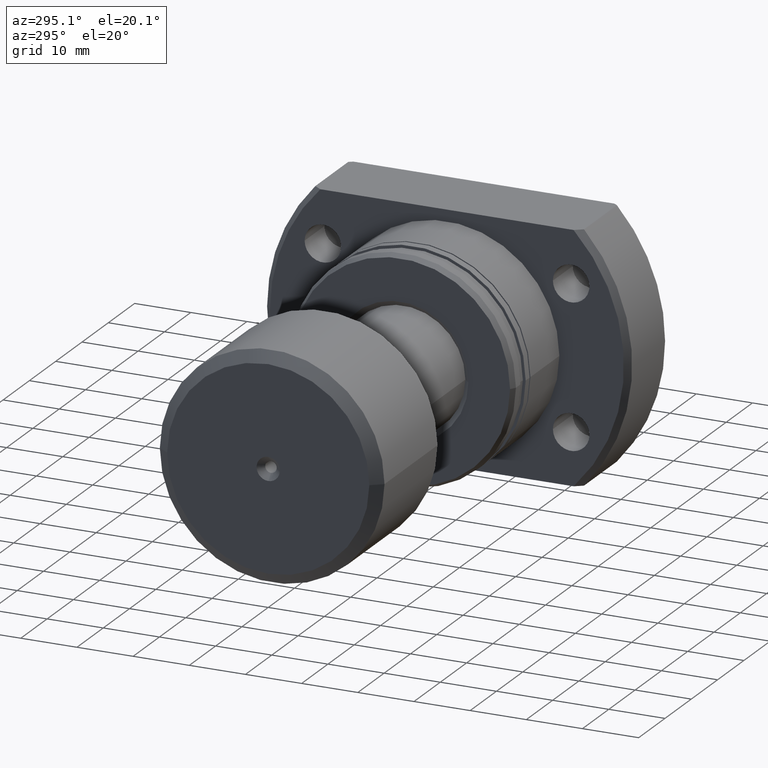
[diagram: clean part render]
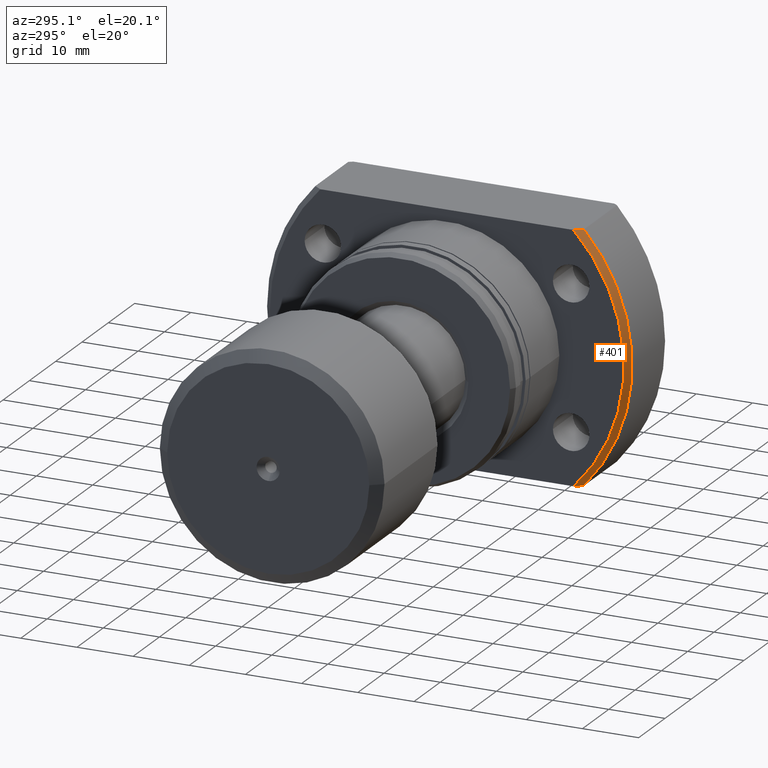
[diagram: same view with one face highlighted and labeled with its STEP entity id]
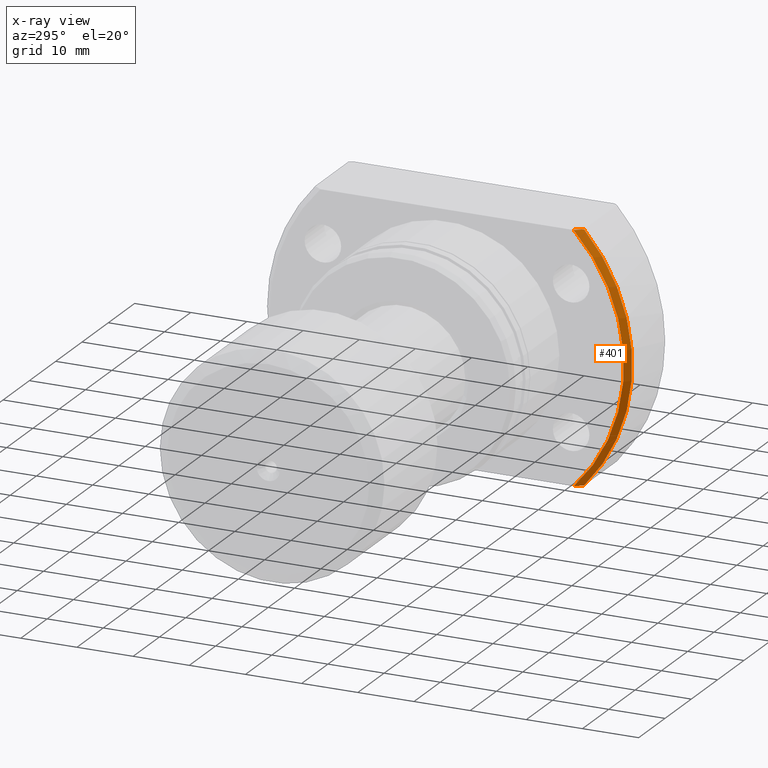
[diagram: x-ray of the same camera — body ghosted, the highlighted face saturated]
A machine part, auxiliary view. The second image highlights one B-rep face of the part: STEP entity #401.
The next image is the same camera in x-ray: the body ghosted, the highlighted face saturated — about 0% of this face is hidden behind the body in this view.
In plain terms, the highlighted conical surface has half-angle 45 deg.
Its self-contained STEP definition (entity closure, byte-faithful):
#17 = EDGE_CURVE ( 'NONE', #2206, #2792, #363, .T. ) ;
#69 = CARTESIAN_POINT ( 'NONE',  ( 17.50000000000001776, -22.54440063519093940, -22.00000000000000355 ) ) ;
#196 = DIRECTION ( 'NONE',  ( 1.000000000000000000, 2.721437331438560389E-17, -0.000000000000000000 ) ) ;
#299 = CARTESIAN_POINT ( 'NONE',  ( 18.49999999999998934, -23.92174742781089947, -22.00000000000000355 ) ) ;
#363 = CIRCLE ( 'NONE', #1242, 32.49999999999990763 ) ;
#375 = CARTESIAN_POINT ( 'NONE',  ( 17.50000000000001776, -22.54440063519093940, 22.00000000000000355 ) ) ;
#401 = ADVANCED_FACE ( 'NONE', ( #689 ), #622, .T. ) ;
#532 = CIRCLE ( 'NONE', #1667, 31.49999999999993250 ) ;
#586 = ORIENTED_EDGE ( 'NONE', *, *, #17, .F. ) ;
#591 = CARTESIAN_POINT ( 'NONE',  ( 18.49999999999998934, 5.034659063161333869E-16, 0.000000000000000000 ) ) ;
#622 = CONICAL_SURFACE ( 'NONE', #2228, 31.49999999999993250, 0.7853981633974466137 ) ;
#625 = DIRECTION ( 'NONE',  ( 1.000000000000000000, 2.721437331438560389E-17, -0.000000000000000000 ) ) ;
#689 = FACE_OUTER_BOUND ( 'NONE', #1551, .T. ) ;
#965 = ORIENTED_EDGE ( 'NONE', *, *, #2899, .F. ) ;
#1242 = AXIS2_PLACEMENT_3D ( 'NONE', #591, #1572, #1919 ) ;
#1325 = CARTESIAN_POINT ( 'NONE',  ( 17.50000000000000355, 4.762515330017481928E-16, 0.000000000000000000 ) ) ;
#1408 = B_SPLINE_CURVE_WITH_KNOTS ( 'NONE', 3,
 ( #375, #1586, #1630, #2830 ),
 .UNSPECIFIED., .F., .F.,
 ( 4, 4 ),
 ( 0.08934887722955515976, 0.09106053602301780736 ),
 .UNSPECIFIED. ) ;
#1543 = EDGE_CURVE ( 'NONE', #2063, #2792, #2260, .T. ) ;
#1551 = EDGE_LOOP ( 'NONE', ( #965, #2620, #2290, #586 ) ) ;
#1572 = DIRECTION ( 'NONE',  ( 1.000000000000000000, 2.721437331438560389E-17, -0.000000000000000000 ) ) ;
#1586 = CARTESIAN_POINT ( 'NONE',  ( 17.82998096711740033, -23.00546414414808183, 22.00000000000000355 ) ) ;
#1610 = DIRECTION ( 'NONE',  ( 0.000000000000000000, 1.000000000000000000, 0.000000000000000000 ) ) ;
#1616 = CARTESIAN_POINT ( 'NONE',  ( 17.50000000000001776, -22.54440063519093940, 22.00000000000000355 ) ) ;
#1630 = CARTESIAN_POINT ( 'NONE',  ( 18.16344437228347886, -23.46450416271138906, 22.00000000000000355 ) ) ;
#1667 = AXIS2_PLACEMENT_3D ( 'NONE', #1325, #625, #1610 ) ;
#1705 = DIRECTION ( 'NONE',  ( 0.000000000000000000, 1.000000000000000000, 0.000000000000000000 ) ) ;
#1805 = CARTESIAN_POINT ( 'NONE',  ( 18.16344437228347886, -23.46450416271138906, -22.00000000000000355 ) ) ;
#1919 = DIRECTION ( 'NONE',  ( 0.000000000000000000, 1.000000000000000000, 0.000000000000000000 ) ) ;
#2010 = CARTESIAN_POINT ( 'NONE',  ( 18.49999999999998934, -23.92174742781089947, -22.00000000000000355 ) ) ;
#2020 = EDGE_CURVE ( 'NONE', #2907, #2063, #532, .T. ) ;
#2063 = VERTEX_POINT ( 'NONE', #2070 ) ;
#2070 = CARTESIAN_POINT ( 'NONE',  ( 17.50000000000001776, -22.54440063519093940, -22.00000000000000355 ) ) ;
#2195 = CARTESIAN_POINT ( 'NONE',  ( 18.49999999999998934, -23.92174742781089591, 22.00000000000001066 ) ) ;
#2206 = VERTEX_POINT ( 'NONE', #2195 ) ;
#2228 = AXIS2_PLACEMENT_3D ( 'NONE', #2404, #196, #1705 ) ;
#2260 = B_SPLINE_CURVE_WITH_KNOTS ( 'NONE', 3,
 ( #69, #2322, #1805, #299 ),
 .UNSPECIFIED., .F., .F.,
 ( 4, 4 ),
 ( 0.08934887722955515976, 0.09106053602301780736 ),
 .UNSPECIFIED. ) ;
#2290 = ORIENTED_EDGE ( 'NONE', *, *, #1543, .T. ) ;
#2322 = CARTESIAN_POINT ( 'NONE',  ( 17.82998096711740033, -23.00546414414808183, -22.00000000000000355 ) ) ;
#2404 = CARTESIAN_POINT ( 'NONE',  ( 17.50000000000000355, 4.762515330017481928E-16, 0.000000000000000000 ) ) ;
#2620 = ORIENTED_EDGE ( 'NONE', *, *, #2020, .T. ) ;
#2792 = VERTEX_POINT ( 'NONE', #2010 ) ;
#2830 = CARTESIAN_POINT ( 'NONE',  ( 18.49999999999998934, -23.92174742781089591, 22.00000000000001066 ) ) ;
#2899 = EDGE_CURVE ( 'NONE', #2907, #2206, #1408, .T. ) ;
#2907 = VERTEX_POINT ( 'NONE', #1616 ) ;